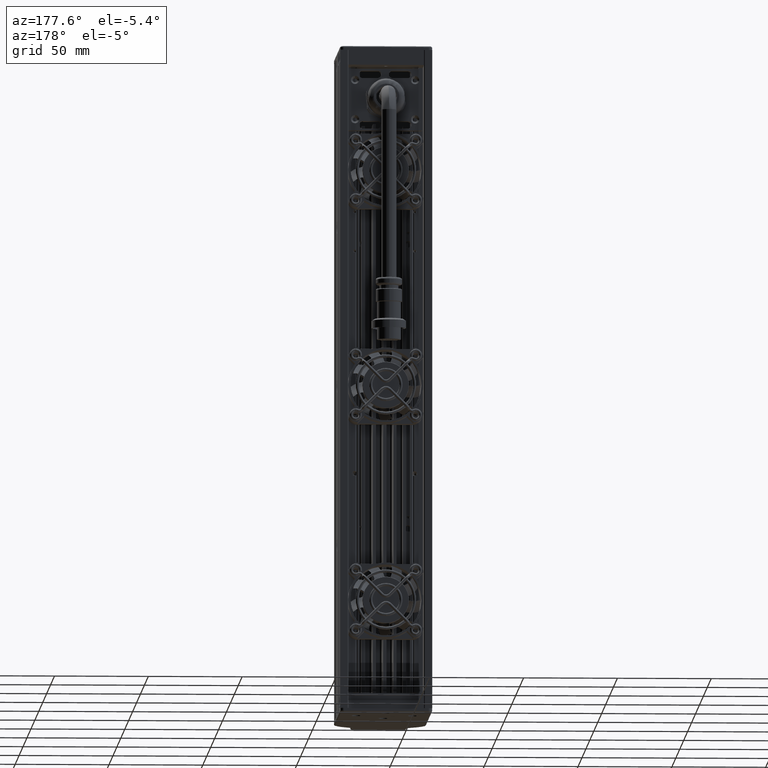
[diagram: clean part render]
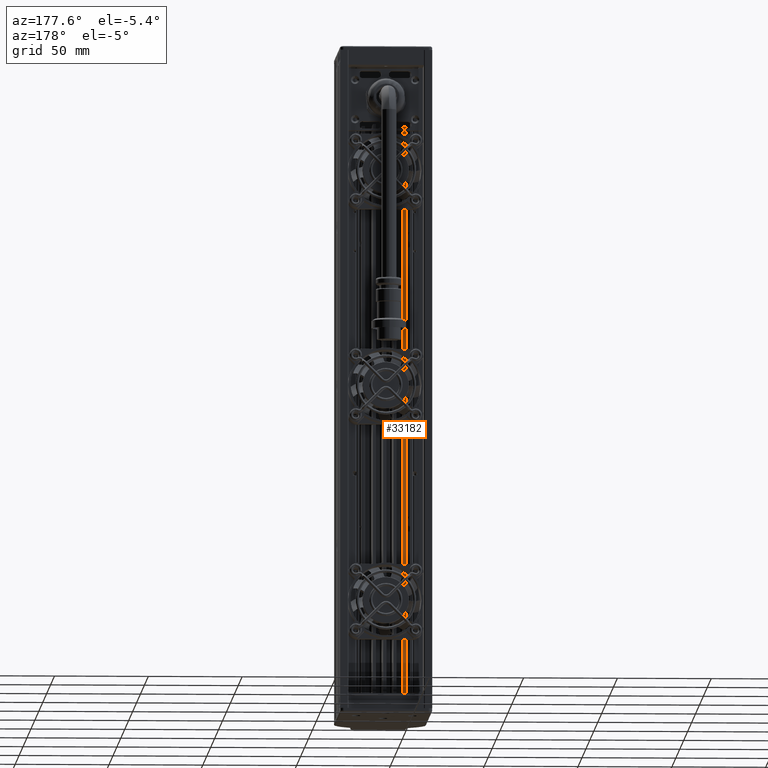
[diagram: same view with one face highlighted and labeled with its STEP entity id]
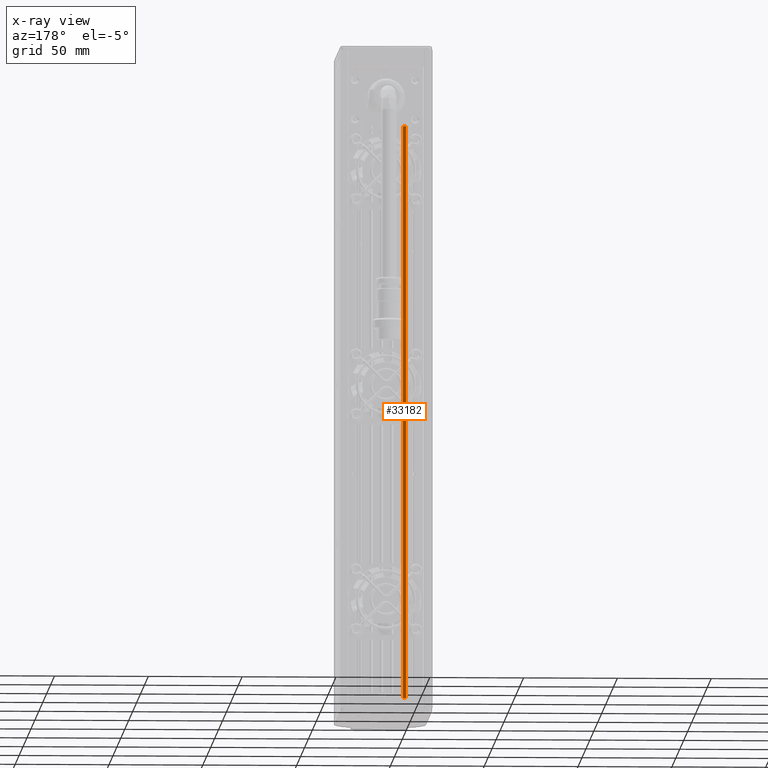
[diagram: x-ray of the same camera — body ghosted, the highlighted face saturated]
A machine part, auxiliary view. The second image highlights one B-rep face of the part: STEP entity #33182.
The next image is the same camera in x-ray: the body ghosted, the highlighted face saturated — about 2% of this face is hidden behind the body in this view.
In plain terms, the highlighted planar face has unit normal (0, 1, 0).
Its self-contained STEP definition (entity closure, byte-faithful):
#196 = LINE ( 'NONE', #25692, #38274 ) ;
#4249 = DIRECTION ( 'NONE',  ( -0.0000000000000000000, 0.0000000000000000000, -1.000000000000000000 ) ) ;
#5172 = FACE_OUTER_BOUND ( 'NONE', #9483, .T. ) ;
#5480 = PLANE ( 'NONE',  #69794 ) ;
#8785 = DIRECTION ( 'NONE',  ( 1.000000000000000000, -0.0000000000000000000, 0.0000000000000000000 ) ) ;
#9483 = EDGE_LOOP ( 'NONE', ( #20148, #16889, #87933, #38594 ) ) ;
#14306 = EDGE_CURVE ( 'NONE', #97580, #69685, #196, .T. ) ;
#14622 = DIRECTION ( 'NONE',  ( 0.0000000000000000000, -0.0000000000000000000, 1.000000000000000000 ) ) ;
#15509 = CARTESIAN_POINT ( 'NONE',  ( -47.71201180637543600, 14.00452420306965900, 137.9999999999999700 ) ) ;
#16889 = ORIENTED_EDGE ( 'NONE', *, *, #78964, .F. ) ;
#17833 = LINE ( 'NONE', #55983, #99437 ) ;
#20148 = ORIENTED_EDGE ( 'NONE', *, *, #108384, .T. ) ;
#21120 = LINE ( 'NONE', #52896, #23872 ) ;
#23872 = VECTOR ( 'NONE', #8785, 1000.000000000000000 ) ;
#25692 = CARTESIAN_POINT ( 'NONE',  ( -49.41201180637543900, 14.00452420306966100, 176.0000000000000000 ) ) ;
#29095 = CARTESIAN_POINT ( 'NONE',  ( -49.41201180637543900, 14.00452420306965900, 137.9999999999999700 ) ) ;
#31310 = DIRECTION ( 'NONE',  ( 0.0000000000000000000, 1.000000000000000000, 0.0000000000000000000 ) ) ;
#33182 = ADVANCED_FACE ( 'NONE', ( #5172 ), #5480, .T. ) ;
#38274 = VECTOR ( 'NONE', #71719, 1000.000000000000000 ) ;
#38594 = ORIENTED_EDGE ( 'NONE', *, *, #59397, .F. ) ;
#48097 = LINE ( 'NONE', #70028, #68589 ) ;
#52896 = CARTESIAN_POINT ( 'NONE',  ( -50.41201180637543200, 14.00452420306965900, -167.9999999999999700 ) ) ;
#55983 = CARTESIAN_POINT ( 'NONE',  ( -47.71201180637543600, 14.00452420306966100, 176.0000000000000000 ) ) ;
#59397 = EDGE_CURVE ( 'NONE', #106901, #97580, #48097, .T. ) ;
#68589 = VECTOR ( 'NONE', #106054, 1000.000000000000000 ) ;
#69685 = VERTEX_POINT ( 'NONE', #90874 ) ;
#69794 = AXIS2_PLACEMENT_3D ( 'NONE', #101658, #31310, #14622 ) ;
#70028 = CARTESIAN_POINT ( 'NONE',  ( -50.41201180637543200, 14.00452420306965900, 137.9999999999999700 ) ) ;
#71719 = DIRECTION ( 'NONE',  ( -0.0000000000000000000, -0.0000000000000000000, -1.000000000000000000 ) ) ;
#78964 = EDGE_CURVE ( 'NONE', #69685, #101877, #21120, .T. ) ;
#87933 = ORIENTED_EDGE ( 'NONE', *, *, #14306, .F. ) ;
#89141 = CARTESIAN_POINT ( 'NONE',  ( -47.71201180637543600, 14.00452420306965900, -168.0000000000000000 ) ) ;
#90874 = CARTESIAN_POINT ( 'NONE',  ( -49.41201180637543900, 14.00452420306965900, -168.0000000000000000 ) ) ;
#97580 = VERTEX_POINT ( 'NONE', #29095 ) ;
#99437 = VECTOR ( 'NONE', #4249, 1000.000000000000000 ) ;
#101658 = CARTESIAN_POINT ( 'NONE',  ( -37.56201180637544500, 14.00452420306966100, 176.0000000000000000 ) ) ;
#101877 = VERTEX_POINT ( 'NONE', #89141 ) ;
#106054 = DIRECTION ( 'NONE',  ( -1.000000000000000000, -0.0000000000000000000, -0.0000000000000000000 ) ) ;
#106901 = VERTEX_POINT ( 'NONE', #15509 ) ;
#108384 = EDGE_CURVE ( 'NONE', #106901, #101877, #17833, .T. ) ;